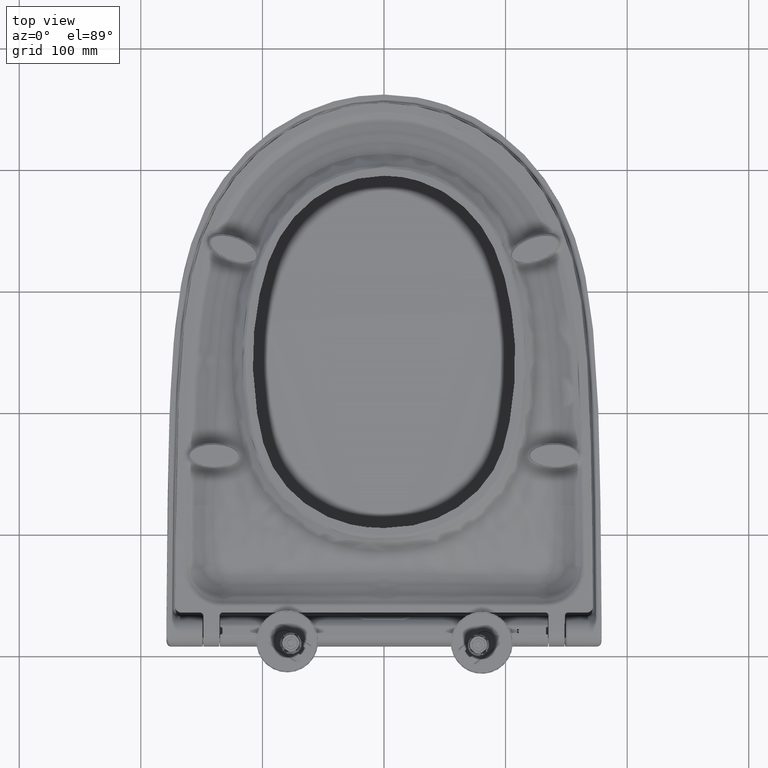
[diagram: clean part render]
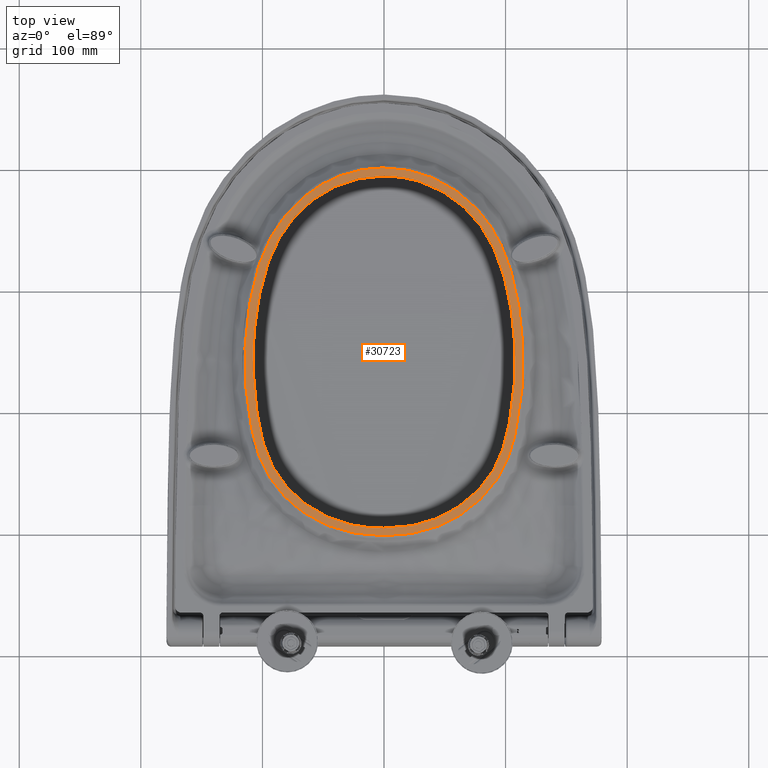
[diagram: same view with one face highlighted and labeled with its STEP entity id]
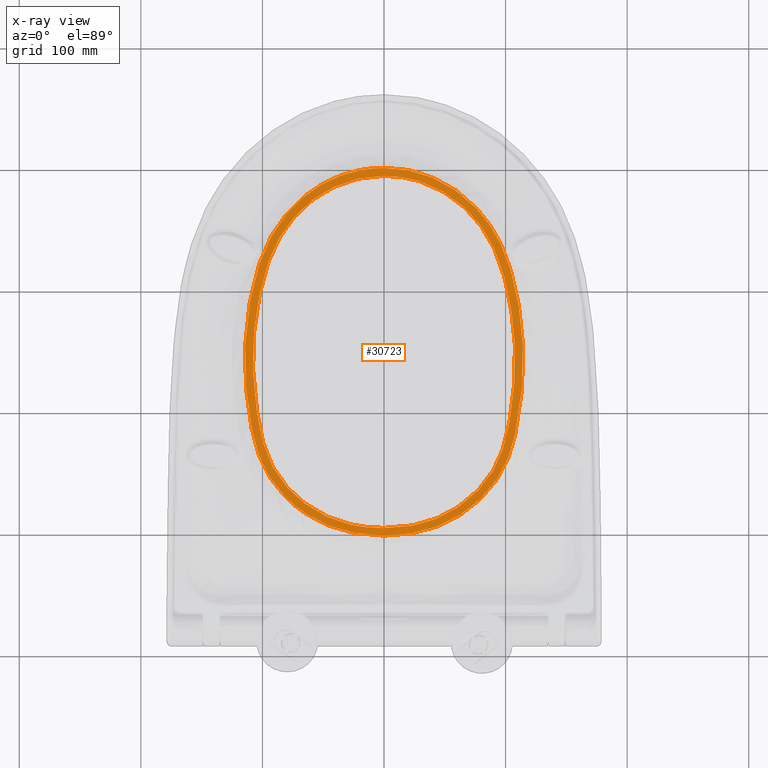
[diagram: x-ray of the same camera — body ghosted, the highlighted face saturated]
A machine part, top view. The second image highlights one B-rep face of the part: STEP entity #30723.
The next image is the same camera in x-ray: the body ghosted, the highlighted face saturated — about 0% of this face is hidden behind the body in this view.
In plain terms, the highlighted planar face has unit normal (0, -0.0114, -0.9999).
Its self-contained STEP definition (entity closure, byte-faithful):
#5683=CARTESIAN_POINT('',(7.550566478359E-7,9.872210614788E1,1.998114698851E0));
#5684=CARTESIAN_POINT('',(-8.941318594085E0,9.872222115607E1,1.998113384471E0));
#5685=CARTESIAN_POINT('',(-2.684039938384E1,1.002526742779E2,1.980622491652E0));
#5686=CARTESIAN_POINT('',(-5.248554202030E1,1.086500337406E2,1.884652669221E0));
#5687=CARTESIAN_POINT('',(-7.506623046407E1,1.234220277434E2,1.715829880618E0));
#5688=CARTESIAN_POINT('',(-9.341824877377E1,1.432761444587E2,1.488925689585E0));
#5689=CARTESIAN_POINT('',(-1.050294091219E2,1.676505971850E2,1.210360515571E0));
#5690=CARTESIAN_POINT('',(-1.105378891813E2,1.940304111676E2,
9.088769271980E-1));
#5691=CARTESIAN_POINT('',(-1.139411540845E2,2.207367230497E2,
6.036619342596E-1));
#5692=CARTESIAN_POINT('',(-1.152143890954E2,2.566061626225E2,
1.937254819995E-1));
#5693=CARTESIAN_POINT('',(-1.110725583947E2,2.924079219420E2,
-2.154374816531E-1));
#5694=CARTESIAN_POINT('',(-1.017620382719E2,3.270740052827E2,
-6.116212912603E-1));
#5695=CARTESIAN_POINT('',(-8.633570464426E1,3.595213462524E2,
-9.824480452006E-1));
#5696=CARTESIAN_POINT('',(-6.009273909842E1,3.852762335936E2,
-1.276789614813E0));
#5697=CARTESIAN_POINT('',(-2.679899385926E1,3.990364900221E2,
-1.434049688283E0));
#5698=CARTESIAN_POINT('',(-8.931659252071E0,4.012690381629E2,
-1.459564524177E0));
#5699=CARTESIAN_POINT('',(5.307584975423E-8,4.012680247424E2,
-1.459552942229E0));
#5701=CARTESIAN_POINT('',(5.307584975423E-8,4.012680247424E2,
-1.459552942229E0));
#5702=CARTESIAN_POINT('',(8.931659307736E0,4.012690381497E2,-1.459564524026E0));
#5703=CARTESIAN_POINT('',(2.679899388758E1,3.990364900070E2,-1.434049688110E0));
#5704=CARTESIAN_POINT('',(6.009273890621E1,3.852762336799E2,-1.276789615799E0));
#5705=CARTESIAN_POINT('',(8.633570438328E1,3.595213465644E2,
-9.824480487658E-1));
#5706=CARTESIAN_POINT('',(1.017620380631E2,3.270740058471E2,
-6.116212977106E-1));
#5707=CARTESIAN_POINT('',(1.110725582537E2,2.924079227353E2,
-2.154374907185E-1));
#5708=CARTESIAN_POINT('',(1.152143890272E2,2.566061636296E2,1.937254704894E-1));
#5709=CARTESIAN_POINT('',(1.139411541884E2,2.207367242547E2,6.036619204888E-1));
#5710=CARTESIAN_POINT('',(1.105378893861E2,1.940304125125E2,9.088769118274E-1));
#5711=CARTESIAN_POINT('',(1.050294095493E2,1.676505986453E2,1.210360498882E0));
#5712=CARTESIAN_POINT('',(9.341824971589E1,1.432761458446E2,1.488925673746E0));
#5713=CARTESIAN_POINT('',(7.506623187647E1,1.234220289301E2,1.715829867055E0));
#5714=CARTESIAN_POINT('',(5.248554370264E1,1.086500346160E2,1.884652659216E0));
#5715=CARTESIAN_POINT('',(2.684040182514E1,1.002526746906E2,1.980622486936E0));
#5716=CARTESIAN_POINT('',(8.941320052308E0,9.872222128597E1,1.998113382987E0));
#5717=CARTESIAN_POINT('',(7.550566478359E-7,9.872210614788E1,1.998114698851E0));
#5719=CARTESIAN_POINT('',(8.614600909115E-14,3.947368003985E2,
-1.384908716303E0));
#5720=CARTESIAN_POINT('',(-2.751359137008E0,3.947368003985E2,
-1.384908716303E0));
#5721=CARTESIAN_POINT('',(-8.179884844803E0,3.945137954212E2,
-1.382362521321E0));
#5722=CARTESIAN_POINT('',(-1.612296069145E1,3.935365678767E2,
-1.371193228513E0));
#5723=CARTESIAN_POINT('',(-2.379778862415E1,3.919465230468E2,
-1.353021549658E0));
#5724=CARTESIAN_POINT('',(-3.122048016500E1,3.897569214107E2,
-1.327997460742E0));
#5725=CARTESIAN_POINT('',(-3.852595365551E1,3.869299664594E2,
-1.295689422971E0));
#5726=CARTESIAN_POINT('',(-4.571266215789E1,3.834476596579E2,
-1.255891625912E0));
#5727=CARTESIAN_POINT('',(-5.259781937714E1,3.793836733291E2,
-1.209446069219E0));
#5728=CARTESIAN_POINT('',(-5.916152537795E1,3.747552168303E2,
-1.156549423156E0));
#5729=CARTESIAN_POINT('',(-6.543019685322E1,3.695221819614E2,
-1.096743310466E0));
#5730=CARTESIAN_POINT('',(-7.140612010575E1,3.636277033739E2,
-1.029377840869E0));
#5731=CARTESIAN_POINT('',(-7.640774839987E1,3.578478467393E2,
-9.633223364804E-1));
#5732=CARTESIAN_POINT('',(-8.054423202011E1,3.523764600725E2,
-9.007922031431E-1));
#5733=CARTESIAN_POINT('',(-8.416406937063E1,3.469363260876E2,
-8.386192433170E-1));
#5734=CARTESIAN_POINT('',(-8.752838834592E1,3.411407517118E2,
-7.723841075931E-1));
#5735=CARTESIAN_POINT('',(-9.090994087578E1,3.344087851726E2,
-6.954473471446E-1));
#5736=CARTESIAN_POINT('',(-9.428006790411E1,3.264057753049E2,
-6.039843772285E-1));
#5737=CARTESIAN_POINT('',(-9.750690105062E1,3.170600501153E2,
-4.971760893476E-1));
#5738=CARTESIAN_POINT('',(-1.005311743659E2,3.060656550473E2,
-3.715258599994E-1));
#5739=CARTESIAN_POINT('',(-1.031191388706E2,2.939066665584E2,
-2.325659915538E-1));
#5740=CARTESIAN_POINT('',(-1.049844358798E2,2.827044730673E2,
-1.045409230843E-1));
#5741=CARTESIAN_POINT('',(-1.062371568712E2,2.731251464894E2,
4.937094948478E-3));
#5742=CARTESIAN_POINT('',(-1.070796435198E2,2.644480041585E2,
1.041044358735E-1));
#5743=CARTESIAN_POINT('',(-1.076028786826E2,2.565013388472E2,
1.949234680027E-1));
#5744=CARTESIAN_POINT('',(-1.078729177504E2,2.492239226681E2,
2.780939386202E-1));
#5745=CARTESIAN_POINT('',(-1.079433589872E2,2.422909574240E2,
3.573278271244E-1));
#5746=CARTESIAN_POINT('',(-1.078207564768E2,2.351095548789E2,
4.394009990682E-1));
#5747=CARTESIAN_POINT('',(-1.074616230786E2,2.271512221589E2,
5.303533730118E-1));
#5748=CARTESIAN_POINT('',(-1.067746771317E2,2.181145551608E2,
6.336295672755E-1));
#5749=CARTESIAN_POINT('',(-1.057011666884E2,2.082124230763E2,
7.467967910987E-1));
#5750=CARTESIAN_POINT('',(-1.040979422729E2,1.968674733569E2,
8.764533593201E-1));
#5751=CARTESIAN_POINT('',(-1.019925879573E2,1.851776481528E2,1.010051361653E0));
#5752=CARTESIAN_POINT('',(-9.958897903037E1,1.753598254209E2,1.122255050017E0));
#5753=CARTESIAN_POINT('',(-9.684910987079E1,1.668863459319E2,1.219094815606E0));
#5754=CARTESIAN_POINT('',(-9.390756430351E1,1.598006416466E2,1.300074293152E0));
#5755=CARTESIAN_POINT('',(-9.067262176178E1,1.535220610564E2,1.371829499897E0));
#5756=CARTESIAN_POINT('',(-8.684736964228E1,1.474387548968E2,1.441352998863E0));
#5757=CARTESIAN_POINT('',(-8.232363733396E1,1.414225918419E2,1.510109148063E0));
#5758=CARTESIAN_POINT('',(-7.713881397359E1,1.356034767273E2,1.576613320801E0));
#5759=CARTESIAN_POINT('',(-7.131799631304E1,1.300624650634E2,1.639939168388E0));
#5760=CARTESIAN_POINT('',(-6.495823239348E1,1.249257002243E2,1.698645052264E0));
#5761=CARTESIAN_POINT('',(-5.816361587380E1,1.202974021718E2,1.751539887149E0));
#5762=CARTESIAN_POINT('',(-5.108912603598E1,1.162759304156E2,1.797499564363E0));
#5763=CARTESIAN_POINT('',(-4.387948548563E1,1.129209531204E2,1.835842162023E0));
#5764=CARTESIAN_POINT('',(-3.640808757723E1,1.101644747690E2,1.867344771753E0));
#5765=CARTESIAN_POINT('',(-2.844659414443E1,1.079372266369E2,1.892799036119E0));
#5766=CARTESIAN_POINT('',(-1.984363211297E1,1.062572872578E2,1.911998343310E0));
#5767=CARTESIAN_POINT('',(-1.050267187950E1,1.051782621377E2,1.924330058966E0));
#5768=CARTESIAN_POINT('',(-3.602962775582E0,1.049117664260E2,1.927375724247E0));
#5769=CARTESIAN_POINT('',(-6.189218866552E-10,1.049117664260E2,
1.927375724247E0));
#5771=CARTESIAN_POINT('',(-6.189218866552E-10,1.049117664260E2,
1.927375724247E0));
#5772=CARTESIAN_POINT('',(3.597383582686E0,1.049117664260E2,1.927375724247E0));
#5773=CARTESIAN_POINT('',(1.048627173896E1,1.051774833933E2,1.924338958903E0));
#5774=CARTESIAN_POINT('',(1.980976626691E1,1.062525233485E2,1.912052787988E0));
#5775=CARTESIAN_POINT('',(2.840077055107E1,1.079267081282E2,1.892919247647E0));
#5776=CARTESIAN_POINT('',(3.635440449320E1,1.101474875064E2,1.867538911897E0));
#5777=CARTESIAN_POINT('',(4.381483743201E1,1.128944572505E2,1.836144971964E0));
#5778=CARTESIAN_POINT('',(5.101783101364E1,1.162394735614E2,1.797916214125E0));
#5779=CARTESIAN_POINT('',(5.808179005723E1,1.202470500269E2,1.752115340234E0));
#5780=CARTESIAN_POINT('',(6.486408721409E1,1.248565916819E2,1.699434864177E0));
#5781=CARTESIAN_POINT('',(7.121546599021E1,1.299733203966E2,1.640957964580E0));
#5782=CARTESIAN_POINT('',(7.703385877458E1,1.354958663171E2,1.577843154061E0));
#5783=CARTESIAN_POINT('',(8.222355189888E1,1.413006415296E2,1.511502865917E0));
#5784=CARTESIAN_POINT('',(8.675811733779E1,1.473107227762E2,1.442816223099E0));
#5785=CARTESIAN_POINT('',(9.058040496665E1,1.533613246380E2,1.373666487536E0));
#5786=CARTESIAN_POINT('',(9.384639917929E1,1.596648710255E2,1.301625957393E0));
#5787=CARTESIAN_POINT('',(9.680525386440E1,1.667678371110E2,1.220449202130E0));
#5788=CARTESIAN_POINT('',(9.954485856773E1,1.752034570980E2,1.124042116565E0));
#5789=CARTESIAN_POINT('',(1.019569057781E2,1.850116225566E2,1.011948797038E0));
#5790=CARTESIAN_POINT('',(1.040718852013E2,1.966784515116E2,8.786136089804E-1));
#5791=CARTESIAN_POINT('',(1.057507839608E2,2.085711710567E2,7.426968141792E-1));
#5792=CARTESIAN_POINT('',(1.068176265877E2,2.185815847670E2,6.282920860619E-1));
#5793=CARTESIAN_POINT('',(1.074901572054E2,2.276305961052E2,5.248748136247E-1));
#5794=CARTESIAN_POINT('',(1.078308961756E2,2.354826590882E2,4.351369509628E-1));
#5795=CARTESIAN_POINT('',(1.079436051100E2,2.425534700159E2,3.543276832167E-1));
#5796=CARTESIAN_POINT('',(1.078670206429E2,2.494609737588E2,2.753847832978E-1));
#5797=CARTESIAN_POINT('',(1.075903680747E2,2.567595307496E2,1.919727034036E-1));
#5798=CARTESIAN_POINT('',(1.070490634317E2,2.648230699605E2,9.981796956461E-2));
#5799=CARTESIAN_POINT('',(1.061996596395E2,2.734476798820E2,1.250999033297E-3));
#5800=CARTESIAN_POINT('',(1.049344057515E2,2.830363487824E2,
-1.083337884006E-1));
#5801=CARTESIAN_POINT('',(1.030587477347E2,2.942344858780E2,
-2.363124980646E-1));
#5802=CARTESIAN_POINT('',(1.004256404757E2,3.065038119250E2,
-3.765333671728E-1));
#5803=CARTESIAN_POINT('',(9.739499019893E1,3.174167685387E2,
-5.012528713290E-1));
#5804=CARTESIAN_POINT('',(9.416972314722E1,3.266920029413E2,
-6.072555502161E-1));
#5805=CARTESIAN_POINT('',(9.080237752191E1,3.346394874181E2,
-6.980839442362E-1));
#5806=CARTESIAN_POINT('',(8.742912816202E1,3.413234658519E2,
-7.744722691943E-1));
#5807=CARTESIAN_POINT('',(8.405472331616E1,3.471122205484E2,
-8.406294657262E-1));
#5808=CARTESIAN_POINT('',(8.042439784669E1,3.525443282617E2,
-9.027106967340E-1));
#5809=CARTESIAN_POINT('',(7.627800948782E1,3.580084383306E2,
-9.651576689528E-1));
#5810=CARTESIAN_POINT('',(7.126654461122E1,3.637741897038E2,-1.031051970354E0));
#5811=CARTESIAN_POINT('',(6.535032702397E1,3.695920700567E2,-1.097542031555E0));
#5812=CARTESIAN_POINT('',(5.909064519964E1,3.748098716478E2,-1.157174049642E0));
#5813=CARTESIAN_POINT('',(5.251912125164E1,3.794344271762E2,-1.210026113186E0));
#5814=CARTESIAN_POINT('',(4.563936896454E1,3.834864742097E2,-1.256335220790E0));
#5815=CARTESIAN_POINT('',(3.846287561506E1,3.869569787176E2,-1.295998134492E0));
#5816=CARTESIAN_POINT('',(3.116842789027E1,3.897742630896E2,-1.328195651358E0));
#5817=CARTESIAN_POINT('',(2.375776209016E1,3.919560965863E2,-1.353130961539E0));
#5818=CARTESIAN_POINT('',(1.609756739649E1,3.935403393312E2,-1.371236330851E0));
#5819=CARTESIAN_POINT('',(8.167037846406E0,3.945145038814E2,-1.382370618008E0));
#5820=CARTESIAN_POINT('',(2.747126338593E0,3.947368003985E2,-1.384908716303E0));
#5821=CARTESIAN_POINT('',(8.614600909115E-14,3.947368003985E2,
-1.384908716303E0));
#5826=CARTESIAN_POINT('',(5.307584975423E-8,4.012680247424E2,
-1.459552942229E0));
#6711=VERTEX_POINT('',#5826);
#6712=VERTEX_POINT('',#5683);
#6713=VERTEX_POINT('',#5719);
#6714=VERTEX_POINT('',#5769);
#30708=CARTESIAN_POINT('',(-7.215818668855E1,2.425435467759E2,
3.544410916742E-1));
#30709=DIRECTION('',(0.E0,-1.142782514599E-2,-9.999347002742E-1));
#30710=DIRECTION('',(2.420166009951E-2,9.996418163288E-1,-1.142447790090E-2));
#30711=AXIS2_PLACEMENT_3D('',#30708,#30709,#30710);
#30712=PLANE('',#30711);
#30714=ORIENTED_EDGE('',*,*,#30713,.T.);
#30716=ORIENTED_EDGE('',*,*,#30715,.T.);
#30717=EDGE_LOOP('',(#30714,#30716));
#30718=FACE_OUTER_BOUND('',#30717,.F.);
#30719=ORIENTED_EDGE('',*,*,#30511,.T.);
#30720=ORIENTED_EDGE('',*,*,#30703,.T.);
#30721=EDGE_LOOP('',(#30719,#30720));
#30722=FACE_BOUND('',#30721,.F.);
#5700=B_SPLINE_CURVE_WITH_KNOTS('',3,(#5683,#5684,#5685,#5686,#5687,#5688,#5689,
#5690,#5691,#5692,#5693,#5694,#5695,#5696,#5697,#5698,#5699),.UNSPECIFIED.,.F.,
.F.,(4,1,1,1,1,1,1,1,1,1,1,1,1,1,4),(0.E0,6.25E-2,1.25E-1,1.875E-1,2.5E-1,
3.125E-1,3.75E-1,4.375E-1,5.E-1,6.25E-1,6.875E-1,7.5E-1,8.75E-1,9.375E-1,1.E0),
.UNSPECIFIED.);
#5718=B_SPLINE_CURVE_WITH_KNOTS('',3,(#5701,#5702,#5703,#5704,#5705,#5706,#5707,
#5708,#5709,#5710,#5711,#5712,#5713,#5714,#5715,#5716,#5717),.UNSPECIFIED.,.F.,
.F.,(4,1,1,1,1,1,1,1,1,1,1,1,1,1,4),(0.E0,6.25E-2,1.25E-1,2.5E-1,3.125E-1,
3.75E-1,5.E-1,5.625E-1,6.25E-1,6.875E-1,7.5E-1,8.125E-1,8.75E-1,9.375E-1,1.E0),
.UNSPECIFIED.);
#5770=B_SPLINE_CURVE_WITH_KNOTS('',3,(#5719,#5720,#5721,#5722,#5723,#5724,#5725,
#5726,#5727,#5728,#5729,#5730,#5731,#5732,#5733,#5734,#5735,#5736,#5737,#5738,
#5739,#5740,#5741,#5742,#5743,#5744,#5745,#5746,#5747,#5748,#5749,#5750,#5751,
#5752,#5753,#5754,#5755,#5756,#5757,#5758,#5759,#5760,#5761,#5762,#5763,#5764,
#5765,#5766,#5767,#5768,#5769),.UNSPECIFIED.,.F.,.F.,(4,1,1,1,1,1,1,1,1,1,1,1,1,
1,1,1,1,1,1,1,1,1,1,1,1,1,1,1,1,1,1,1,1,1,1,1,1,1,1,1,1,1,1,1,1,1,1,1,4),(0.E0,
2.083333333333E-2,4.166666666667E-2,6.25E-2,8.333333333333E-2,1.041666666667E-1,
1.25E-1,1.458333333333E-1,1.666666666667E-1,1.875E-1,2.083333333333E-1,
2.291666666667E-1,2.5E-1,2.708333333333E-1,2.916666666667E-1,3.125E-1,
3.333333333333E-1,3.541666666667E-1,3.75E-1,3.958333333333E-1,4.166666666667E-1,
4.375E-1,4.583333333333E-1,4.791666666667E-1,5.E-1,5.208333333333E-1,
5.416666666667E-1,5.625E-1,5.833333333333E-1,6.041666666667E-1,6.25E-1,
6.458333333333E-1,6.666666666667E-1,6.875E-1,7.083333333333E-1,
7.291666666667E-1,7.5E-1,7.708333333333E-1,7.916666666667E-1,8.125E-1,
8.333333333333E-1,8.541666666667E-1,8.75E-1,8.958333333333E-1,9.166666666667E-1,
9.375E-1,9.583333333333E-1,9.791666666667E-1,1.E0),.UNSPECIFIED.);
#5822=B_SPLINE_CURVE_WITH_KNOTS('',3,(#5771,#5772,#5773,#5774,#5775,#5776,#5777,
#5778,#5779,#5780,#5781,#5782,#5783,#5784,#5785,#5786,#5787,#5788,#5789,#5790,
#5791,#5792,#5793,#5794,#5795,#5796,#5797,#5798,#5799,#5800,#5801,#5802,#5803,
#5804,#5805,#5806,#5807,#5808,#5809,#5810,#5811,#5812,#5813,#5814,#5815,#5816,
#5817,#5818,#5819,#5820,#5821),.UNSPECIFIED.,.F.,.F.,(4,1,1,1,1,1,1,1,1,1,1,1,1,
1,1,1,1,1,1,1,1,1,1,1,1,1,1,1,1,1,1,1,1,1,1,1,1,1,1,1,1,1,1,1,1,1,1,1,4),(0.E0,
2.083333333333E-2,4.166666666667E-2,6.25E-2,8.333333333333E-2,1.041666666667E-1,
1.25E-1,1.458333333333E-1,1.666666666667E-1,1.875E-1,2.083333333333E-1,
2.291666666667E-1,2.5E-1,2.708333333333E-1,2.916666666667E-1,3.125E-1,
3.333333333333E-1,3.541666666667E-1,3.75E-1,3.958333333333E-1,4.166666666667E-1,
4.375E-1,4.583333333333E-1,4.791666666667E-1,5.E-1,5.208333333333E-1,
5.416666666667E-1,5.625E-1,5.833333333333E-1,6.041666666667E-1,6.25E-1,
6.458333333333E-1,6.666666666667E-1,6.875E-1,7.083333333333E-1,
7.291666666667E-1,7.5E-1,7.708333333333E-1,7.916666666667E-1,8.125E-1,
8.333333333333E-1,8.541666666667E-1,8.75E-1,8.958333333333E-1,9.166666666667E-1,
9.375E-1,9.583333333333E-1,9.791666666667E-1,1.E0),.UNSPECIFIED.);
#30511=EDGE_CURVE('',#6713,#6714,#5770,.T.);
#30703=EDGE_CURVE('',#6714,#6713,#5822,.T.);
#30713=EDGE_CURVE('',#6712,#6711,#5700,.T.);
#30715=EDGE_CURVE('',#6711,#6712,#5718,.T.);
#30723=ADVANCED_FACE('',(#30718,#30722),#30712,.F.);